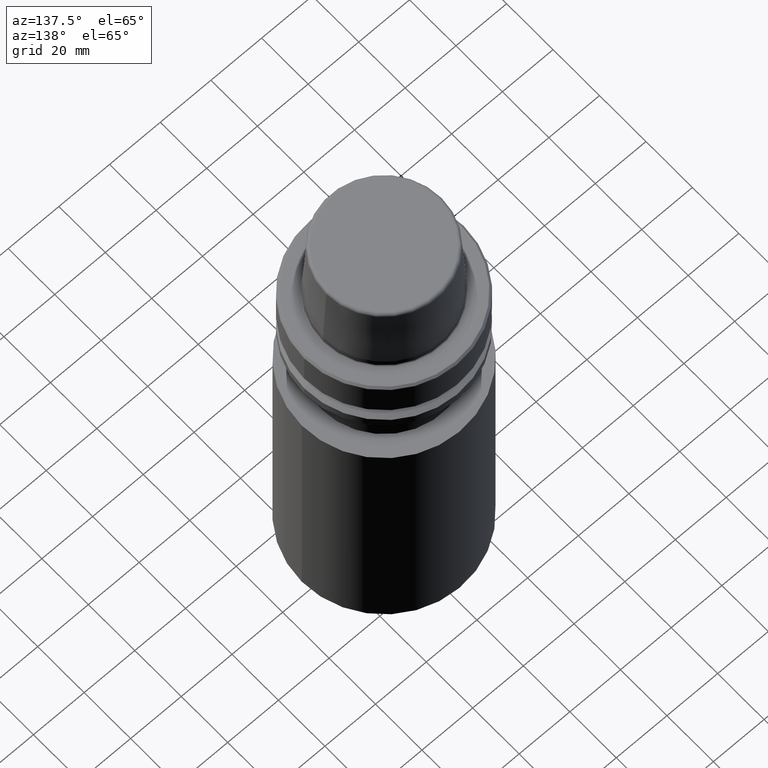
[diagram: clean part render]
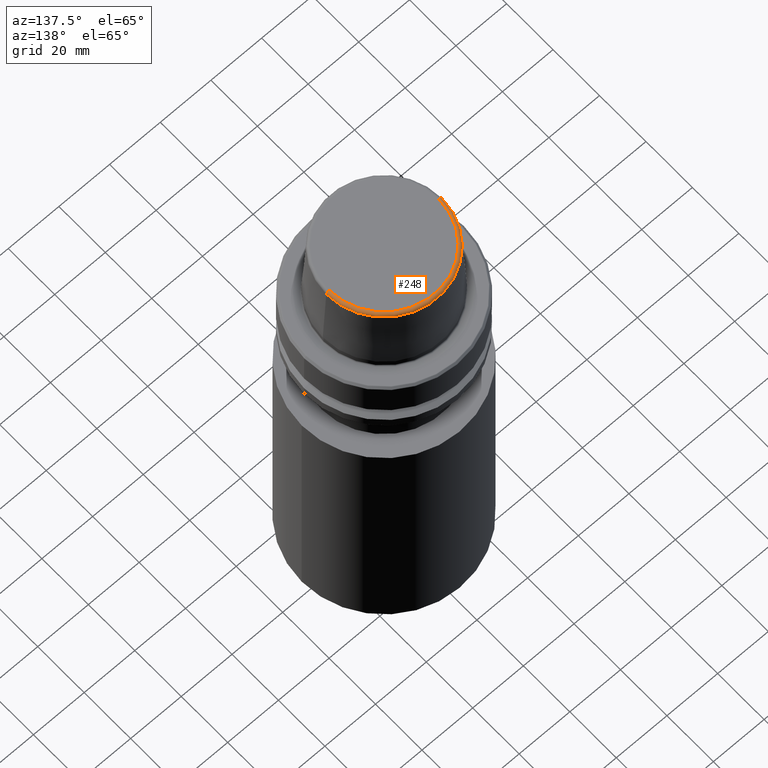
[diagram: same view with one face highlighted and labeled with its STEP entity id]
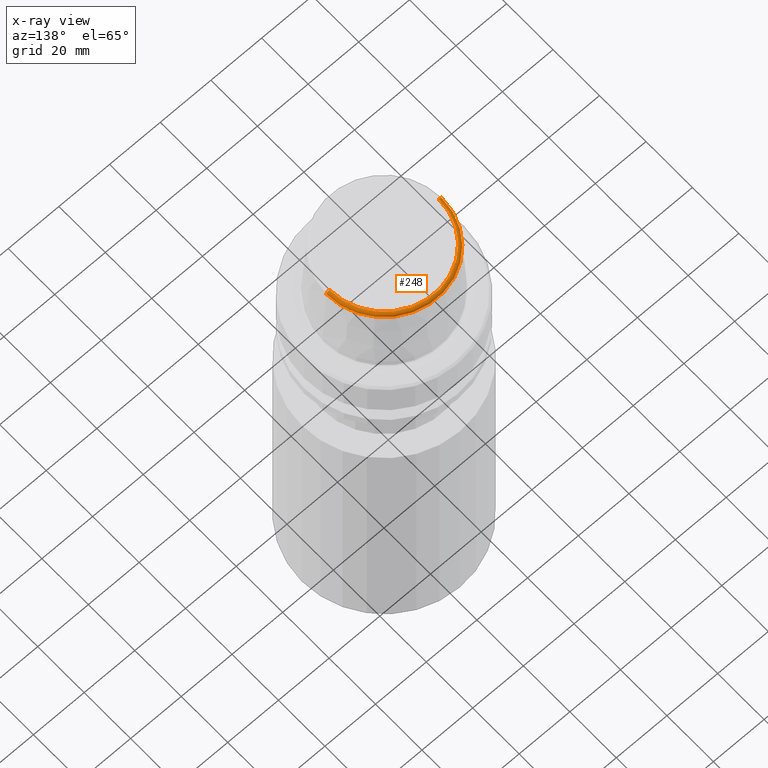
[diagram: x-ray of the same camera — body ghosted, the highlighted face saturated]
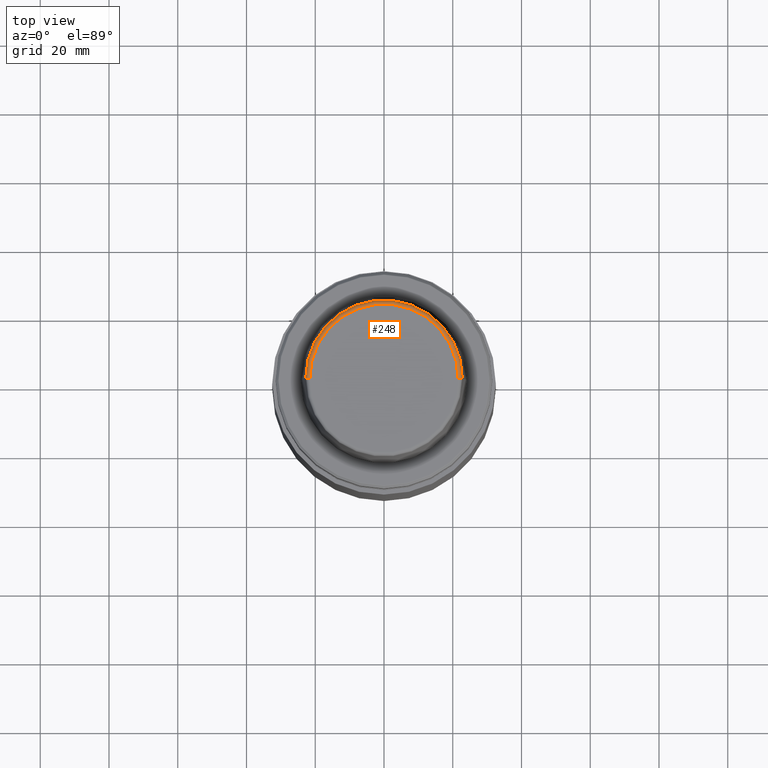
[diagram: same view with one face highlighted and labeled with its STEP entity id]
A machine part, auxiliary view. The second image highlights one B-rep face of the part: STEP entity #248.
The next image is the same camera in x-ray: the body ghosted, the highlighted face saturated — about 0% of this face is hidden behind the body in this view.
A second angle (top view) of the same face is appended — the face is thin or edge-on in the first view.
In plain terms, the highlighted toroidal blend (fillet) surface has major radius 21.5811 mm and minor (blend) radius 1.2 mm.
Its self-contained STEP definition (entity closure, byte-faithful):
#48 = AXIS2_PLACEMENT_3D ( 'NONE', #1172, #551, #1281 ) ;
#57 = EDGE_CURVE ( 'NONE', #990, #752, #1084, .T. ) ;
#96 = AXIS2_PLACEMENT_3D ( 'NONE', #419, #169, #815 ) ;
#153 = EDGE_CURVE ( 'NONE', #990, #575, #709, .T. ) ;
#169 = DIRECTION ( 'NONE',  ( 1.224646799147353200E-016, 1.000000000000000000, 0.0000000000000000000 ) ) ;
#196 = CARTESIAN_POINT ( 'NONE',  ( 21.58108272732117100, 0.0000000000000000000, 31.89999999999999900 ) ) ;
#222 = AXIS2_PLACEMENT_3D ( 'NONE', #757, #549, #1276 ) ;
#248 = ADVANCED_FACE ( 'NONE', ( #919 ), #1265, .T. ) ;
#419 = CARTESIAN_POINT ( 'NONE',  ( -21.58108272732117100, 2.642920388414810300E-015, 30.69999999999999200 ) ) ;
#482 = AXIS2_PLACEMENT_3D ( 'NONE', #528, #1254, #628 ) ;
#528 = CARTESIAN_POINT ( 'NONE',  ( 21.58108272732117100, 0.0000000000000000000, 30.69999999999999200 ) ) ;
#548 = CIRCLE ( 'NONE', #96, 1.200000000000003100 ) ;
#549 = DIRECTION ( 'NONE',  ( -0.0000000000000000000, -0.0000000000000000000, 1.000000000000000000 ) ) ;
#551 = DIRECTION ( 'NONE',  ( -0.0000000000000000000, -0.0000000000000000000, 1.000000000000000000 ) ) ;
#560 = EDGE_CURVE ( 'NONE', #575, #857, #548, .T. ) ;
#575 = VERTEX_POINT ( 'NONE', #648 ) ;
#628 = DIRECTION ( 'NONE',  ( 0.0000000000000000000, 0.0000000000000000000, -1.000000000000000000 ) ) ;
#635 = DIRECTION ( 'NONE',  ( -0.0000000000000000000, -0.0000000000000000000, 1.000000000000000000 ) ) ;
#648 = CARTESIAN_POINT ( 'NONE',  ( -22.77957961851797100, 0.0000000000000000000, 30.76004333261571900 ) ) ;
#709 = CIRCLE ( 'NONE', #222, 22.77957961851797100 ) ;
#747 = DIRECTION ( 'NONE',  ( 1.000000000000000000, 0.0000000000000000000, 0.0000000000000000000 ) ) ;
#752 = VERTEX_POINT ( 'NONE', #196 ) ;
#757 = CARTESIAN_POINT ( 'NONE',  ( 0.0000000000000000000, 0.0000000000000000000, 30.76004333261571900 ) ) ;
#770 = ORIENTED_EDGE ( 'NONE', *, *, #560, .T. ) ;
#811 = ORIENTED_EDGE ( 'NONE', *, *, #153, .T. ) ;
#815 = DIRECTION ( 'NONE',  ( -1.000000000000000000, 1.224646799147353200E-016, 0.0000000000000000000 ) ) ;
#857 = VERTEX_POINT ( 'NONE', #1048 ) ;
#919 = FACE_OUTER_BOUND ( 'NONE', #1162, .T. ) ;
#979 = CIRCLE ( 'NONE', #48, 21.58108272732117100 ) ;
#981 = AXIS2_PLACEMENT_3D ( 'NONE', #1157, #635, #747 ) ;
#982 = EDGE_CURVE ( 'NONE', #752, #857, #979, .T. ) ;
#990 = VERTEX_POINT ( 'NONE', #1277 ) ;
#1032 = ORIENTED_EDGE ( 'NONE', *, *, #57, .F. ) ;
#1048 = CARTESIAN_POINT ( 'NONE',  ( -21.58108272732117100, 2.716307157494421400E-015, 31.89999999999999900 ) ) ;
#1084 = CIRCLE ( 'NONE', #482, 1.200000000000003100 ) ;
#1157 = CARTESIAN_POINT ( 'NONE',  ( 0.0000000000000000000, 0.0000000000000000000, 30.69999999999999200 ) ) ;
#1162 = EDGE_LOOP ( 'NONE', ( #811, #770, #1229, #1032 ) ) ;
#1172 = CARTESIAN_POINT ( 'NONE',  ( 0.0000000000000000000, 0.0000000000000000000, 31.89999999999999900 ) ) ;
#1229 = ORIENTED_EDGE ( 'NONE', *, *, #982, .F. ) ;
#1254 = DIRECTION ( 'NONE',  ( 0.0000000000000000000, -1.000000000000000000, 0.0000000000000000000 ) ) ;
#1265 = TOROIDAL_SURFACE ( 'NONE', #981, 21.58108272732117100, 1.200000000000003100 ) ;
#1276 = DIRECTION ( 'NONE',  ( 1.000000000000000000, 0.0000000000000000000, 0.0000000000000000000 ) ) ;
#1277 = CARTESIAN_POINT ( 'NONE',  ( 22.77957961851797100, 2.874852597157249900E-015, 30.76004333261571900 ) ) ;
#1281 = DIRECTION ( 'NONE',  ( 1.000000000000000000, 0.0000000000000000000, 0.0000000000000000000 ) ) ;